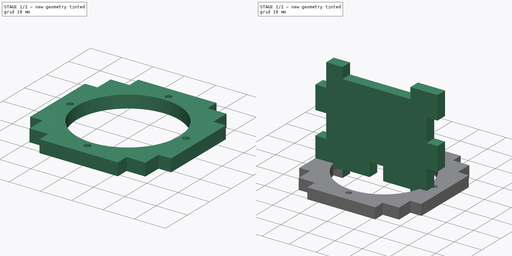
[diagram: build sequence overview — one tinted view per stage of 2, left to right]
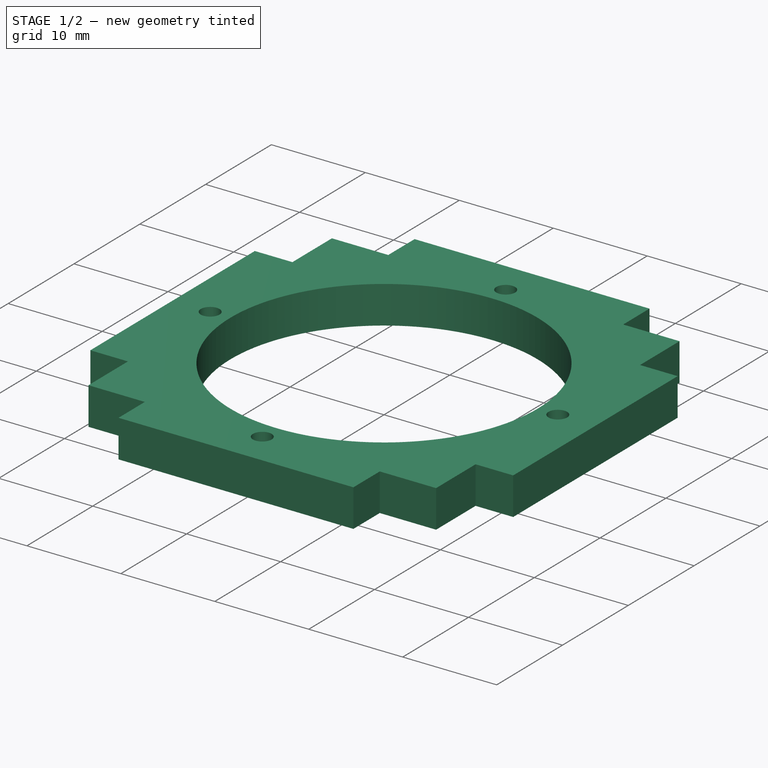
[diagram: stage 1 of 2 — iso view after this stage's code; geometry added in this stage tinted green]
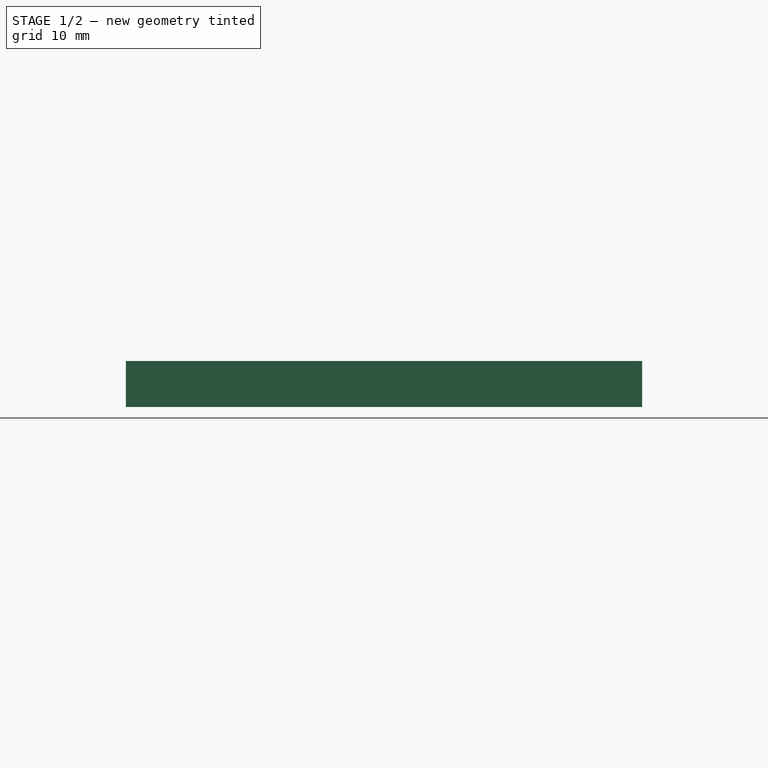
[diagram: stage 1 of 2 — front view after this stage's code; geometry added in this stage tinted green]
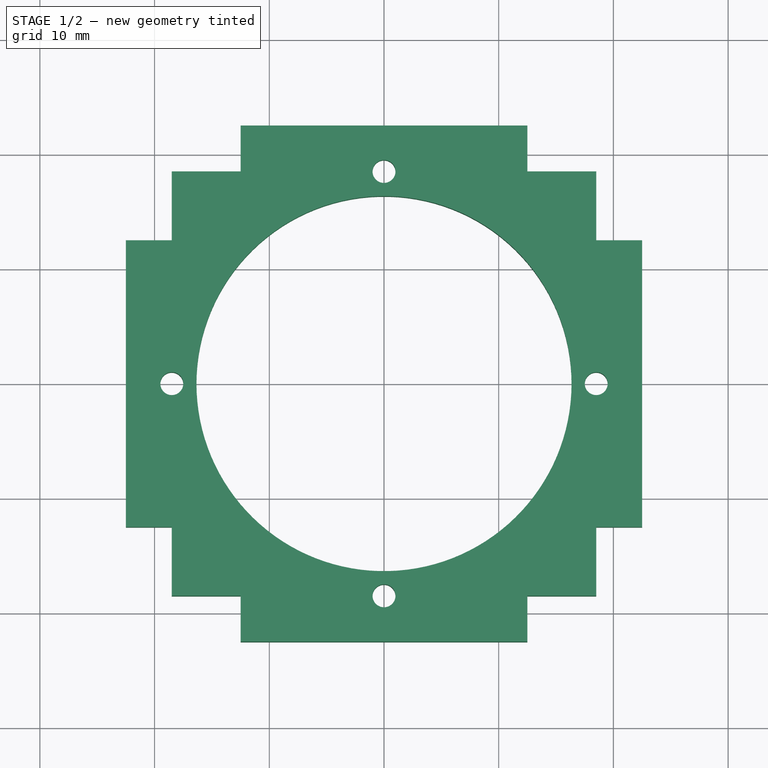
[diagram: stage 1 of 2 — top view after this stage's code; geometry added in this stage tinted green]
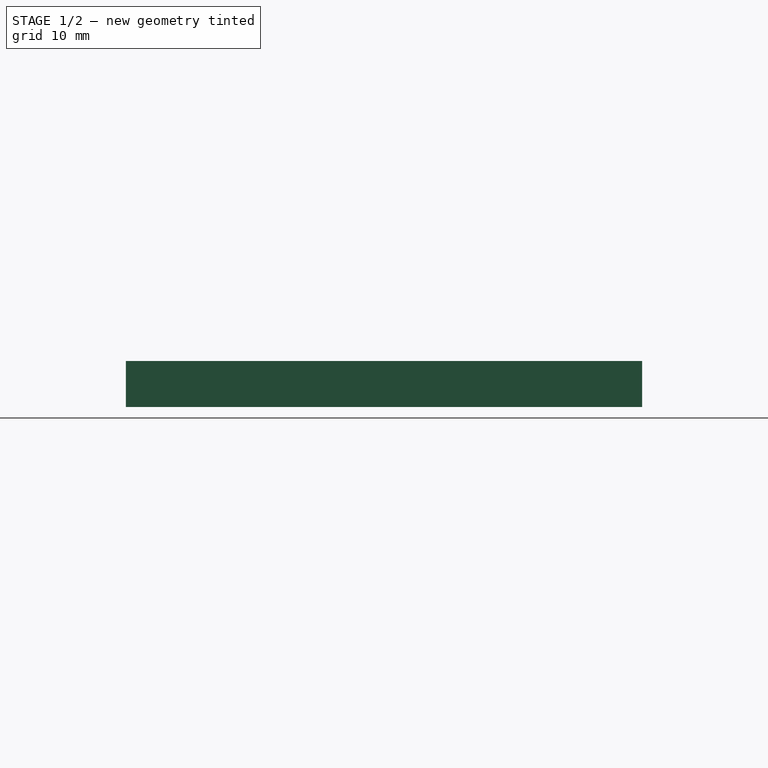
[diagram: stage 1 of 2 — right view after this stage's code; geometry added in this stage tinted green]
FCSTD DOCUMENT  (FreeCAD 0.19R24291 (Git))
Label: ri-speakertest04
License: All rights reserved
LicenseURL: http://en.wikipedia.org/wiki/All_rights_reserved
objects: Sketcher::SketchObject×4, PartDesign::Pad×2, PartDesign::Body×2, Part::Part2DObjectPython×2
note: 12 computed .brp shape members not serialized (recipe doc carries the construction recipe); baked Part::Feature solids carry a one-line shape summary decoded from their .brp

FEATURE [PartDesign::Body] Body001  label="walls"
  Group = -> [Sketch001,Pad]
  Origin = -> Origin001
  Tip = -> Pad
FEATURE [PartDesign::Pad] Pad001
  Direction = (1,1,1)
  Length = 4
  Length2 = 100
  Profile = -> Sketch
  Refine = true
  Type = 0
FEATURE [PartDesign::Body] Body  label="cover"
  Group = -> [Sketch,Pad001]
  Origin = -> Origin
  Tip = -> Pad001
FEATURE [Part::Part2DObjectPython] Shape2DView  # Draft 2D object (typed FeaturePython)
  Base = -> Sketch
  FuseArch = false
  HiddenLines = false
  InPlace = true
  Projection = (0,0,1)
  ProjectionMode = 0
  SegmentLength = 0.05
  Tessellation = false
  VisibleOnly = false
FEATURE [Sketcher::SketchObject] Sketch002  label="cover001"
  FullyConstrained = false
  sketch-geometry (25):
    g0: LineSegment StartX=-22.5 StartY=12.5 StartZ=0 EndX=-22.5 EndY=-12.5 EndZ=0
    g1: LineSegment StartX=-22.5 StartY=-12.5 StartZ=0 EndX=-18.5 EndY=-12.5 EndZ=0
    g2: LineSegment StartX=-18.5 StartY=-12.5 StartZ=0 EndX=-18.5 EndY=-18.5 EndZ=0
    g3: LineSegment StartX=-18.5 StartY=-18.5 StartZ=0 EndX=-12.5 EndY=-18.5 EndZ=0
    g4: LineSegment StartX=-12.5 StartY=-18.5 StartZ=0 EndX=-12.5 EndY=-22.5 EndZ=0
    g5: LineSegment StartX=-12.5 StartY=-22.5 StartZ=0 EndX=12.5 EndY=-22.5 EndZ=0
    g6: LineSegment StartX=12.5 StartY=-22.5 StartZ=0 EndX=12.5 EndY=-18.5 EndZ=0
    g7: LineSegment StartX=12.5 StartY=-18.5 StartZ=0 EndX=18.5 EndY=-18.5 EndZ=0
    g8: LineSegment StartX=18.5 StartY=-18.5 StartZ=0 EndX=18.5 EndY=-12.5 EndZ=0
    g9: LineSegment StartX=18.5 StartY=-12.5 StartZ=0 EndX=22.5 EndY=-12.5 EndZ=0
    g10: LineSegment StartX=22.5 StartY=-12.5 StartZ=0 EndX=22.5 EndY=12.5 EndZ=0
    g11: LineSegment StartX=22.5 StartY=12.5 StartZ=0 EndX=18.5 EndY=12.5 EndZ=0
    g12: LineSegment StartX=18.5 StartY=12.5 StartZ=0 EndX=18.5 EndY=18.5 EndZ=0
    g13: LineSegment StartX=18.5 StartY=18.5 StartZ=0 EndX=12.5 EndY=18.5 EndZ=0
    g14: LineSegment StartX=12.5 StartY=18.5 StartZ=0 EndX=12.5 EndY=22.5 EndZ=0
    g15: LineSegment StartX=12.5 StartY=22.5 StartZ=0 EndX=-12.5 EndY=22.5 EndZ=0
    g16: LineSegment StartX=-12.5 StartY=22.5 StartZ=0 EndX=-12.5 EndY=18.5 EndZ=0
    g17: LineSegment StartX=-12.5 StartY=18.5 StartZ=0 EndX=-18.5 EndY=18.5 EndZ=0
    g18: LineSegment StartX=-18.5 StartY=18.5 StartZ=0 EndX=-18.5 EndY=12.5 EndZ=0
    g19: LineSegment StartX=-18.5 StartY=12.5 StartZ=0 EndX=-22.5 EndY=12.5 EndZ=0
    g20: Circle CenterX=0 CenterY=0 CenterZ=0 NormalX=0 NormalY=0 NormalZ=1 AngleXU=0 Radius=16.35
    g21: Circle CenterX=0 CenterY=18.5 CenterZ=0 NormalX=0 NormalY=0 NormalZ=1 AngleXU=0 Radius=1
    g22: Circle CenterX=18.5 CenterY=0 CenterZ=0 NormalX=0 NormalY=0 NormalZ=1 AngleXU=0 Radius=1
    g23: Circle CenterX=-18.5 CenterY=0 CenterZ=0 NormalX=0 NormalY=0 NormalZ=1 AngleXU=0 Radius=1
    g24: Circle CenterX=0 CenterY=-18.5 CenterZ=0 NormalX=0 NormalY=0 NormalZ=1 AngleXU=0 Radius=1
FEATURE [Part::Part2DObjectPython] Shape2DView001  # Draft 2D object (typed FeaturePython)
  Base = -> Sketch001
  FuseArch = false
  HiddenLines = false
  InPlace = true
  Projection = (0,-1,0)
  ProjectionMode = 0
  SegmentLength = 0.05
  Tessellation = false
  VisibleOnly = false
FEATURE [Sketcher::SketchObject] Sketch003  label="walls001"
  FullyConstrained = false
  sketch-geometry (28):
    g0: LineSegment StartX=-37 StartY=-18.5 StartZ=0 EndX=-37 EndY=-12.5 EndZ=0
    g1: LineSegment StartX=-37 StartY=-12.5 StartZ=0 EndX=-33 EndY=-12.5 EndZ=0
    g2: LineSegment StartX=-33 StartY=-12.5 StartZ=0 EndX=-33 EndY=12.5 EndZ=0
    g3: LineSegment StartX=-33 StartY=12.5 StartZ=0 EndX=-37 EndY=12.5 EndZ=0
    g4: LineSegment StartX=-37 StartY=12.5 StartZ=0 EndX=-37 EndY=22.5 EndZ=0
    g5: LineSegment StartX=-37 StartY=22.5 StartZ=0 EndX=-28.5 EndY=22.5 EndZ=0
    g6: LineSegment StartX=-28.5 StartY=22.5 StartZ=0 EndX=-28.5 EndY=18.5 EndZ=0
    g7: LineSegment StartX=-28.5 StartY=18.5 StartZ=0 EndX=-20 EndY=18.5 EndZ=0
    g8: LineSegment StartX=-20 StartY=18.5 StartZ=0 EndX=-20 EndY=22.5 EndZ=0
    g9: LineSegment StartX=-20 StartY=22.5 StartZ=0 EndX=-11.5 EndY=22.5 EndZ=0
    g10: LineSegment StartX=-11.5 StartY=22.5 StartZ=0 EndX=-11.5 EndY=18.5 EndZ=0
    g11: LineSegment StartX=-11.5 StartY=18.5 StartZ=0 EndX=0 EndY=18.5 EndZ=0
    g12: LineSegment StartX=0 StartY=18.5 StartZ=0 EndX=0 EndY=12.5 EndZ=0
    g13: LineSegment StartX=0 StartY=12.5 StartZ=0 EndX=-3 EndY=12.5 EndZ=0
    g14: LineSegment StartX=-3 StartY=12.5 StartZ=0 EndX=-3 EndY=2.5 EndZ=0
    g15: LineSegment StartX=-3 StartY=2.5 StartZ=0 EndX=-8 EndY=2.5 EndZ=0
    g16: LineSegment StartX=-8 StartY=2.5 StartZ=0 EndX=-8 EndY=-2.5 EndZ=0
    g17: LineSegment StartX=-8 StartY=-2.5 StartZ=0 EndX=-3 EndY=-2.5 EndZ=0
    g18: LineSegment StartX=-3 StartY=-2.5 StartZ=0 EndX=-3 EndY=-12.5 EndZ=0
    g19: LineSegment StartX=-3 StartY=-12.5 StartZ=0 EndX=0 EndY=-12.5 EndZ=0
    g20: LineSegment StartX=0 StartY=-12.5 StartZ=0 EndX=0 EndY=-22.5 EndZ=0
    g21: LineSegment StartX=0 StartY=-22.5 StartZ=0 EndX=-11.5 EndY=-22.5 EndZ=0
    g22: LineSegment StartX=-11.5 StartY=-22.5 StartZ=0 EndX=-11.5 EndY=-18.5 EndZ=0
    g23: LineSegment StartX=-11.5 StartY=-18.5 StartZ=0 EndX=-20 EndY=-18.5 EndZ=0
    g24: LineSegment StartX=-20 StartY=-18.5 StartZ=0 EndX=-20 EndY=-22.5 EndZ=0
    g25: LineSegment StartX=-20 StartY=-22.5 StartZ=0 EndX=-28.5 EndY=-22.5 EndZ=0
    g26: LineSegment StartX=-28.5 StartY=-22.5 StartZ=0 EndX=-28.5 EndY=-18.5 EndZ=0
    g27: LineSegment StartX=-28.5 StartY=-18.5 StartZ=0 EndX=-37 EndY=-18.5 EndZ=0
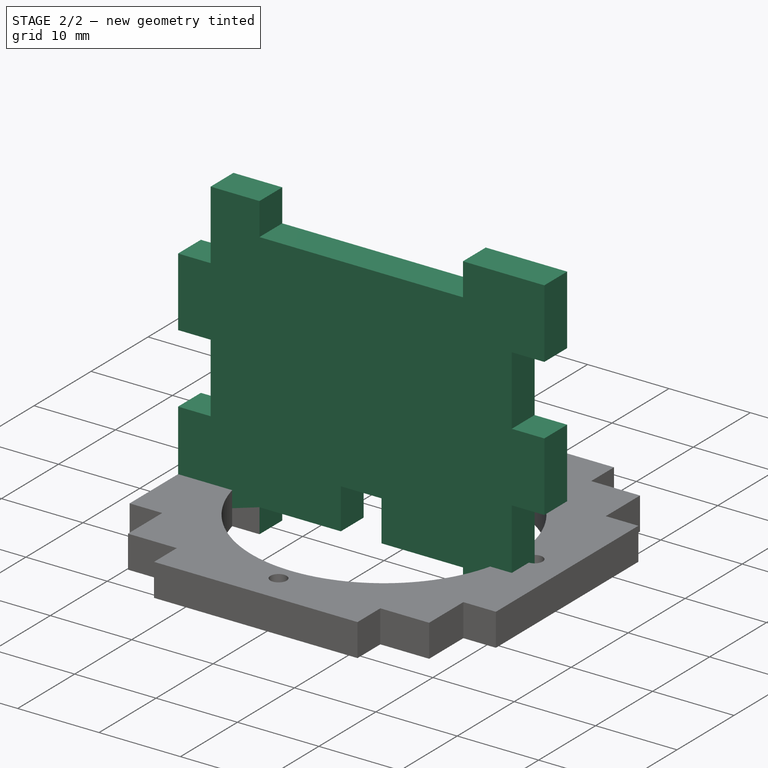
[diagram: stage 2 of 2 — iso view after this stage's code; geometry added in this stage tinted green]
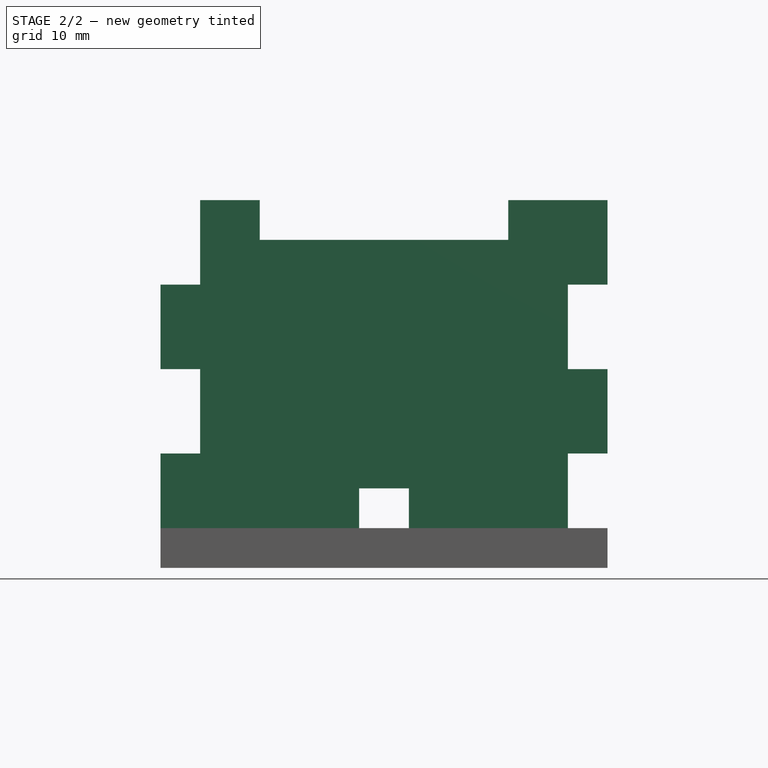
[diagram: stage 2 of 2 — front view after this stage's code; geometry added in this stage tinted green]
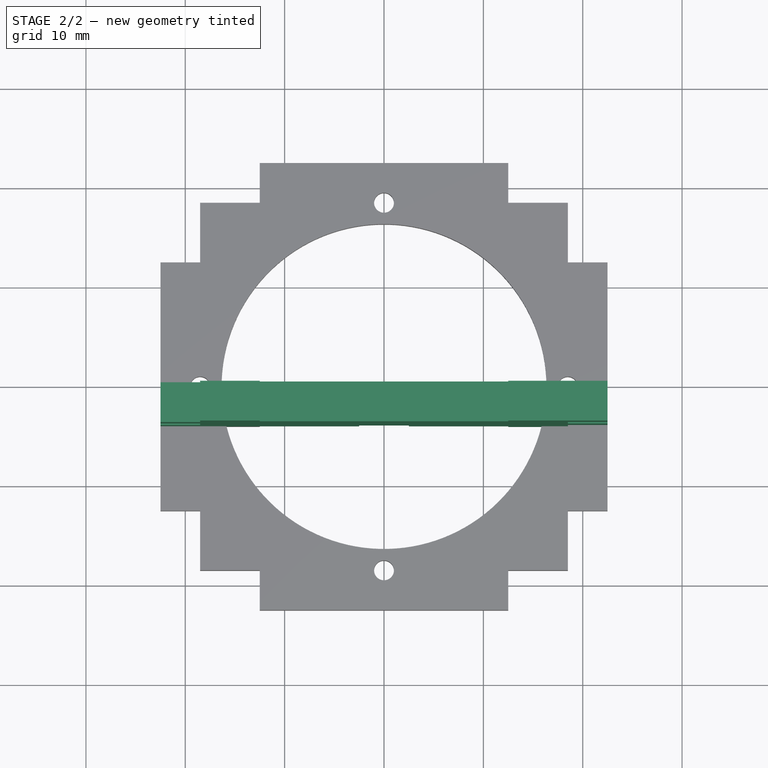
[diagram: stage 2 of 2 — top view after this stage's code; geometry added in this stage tinted green]
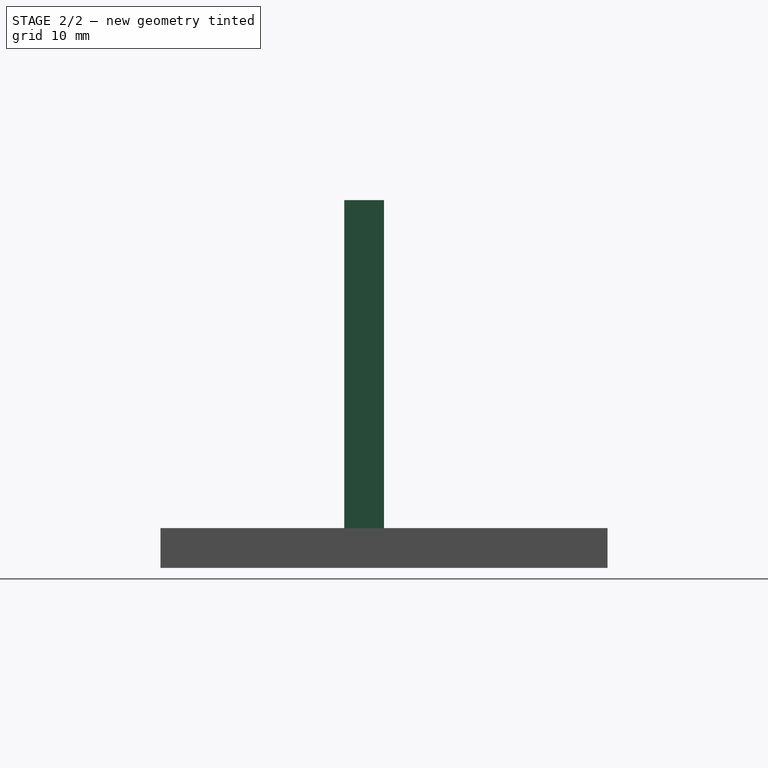
[diagram: stage 2 of 2 — right view after this stage's code; geometry added in this stage tinted green]
FEATURE [Sketcher::SketchObject] Sketch  label="Sketch01"
  FullyConstrained = true
  MapMode = 5
  Support = -> [XY_Plane]
  expr: Constraints[70] = .Constraints.distance
  expr: Constraints[57] = <<Sketch>>.Constraints.base - <<Sketch>>.Constraints.thickness
  expr: Constraints[56] = <<Sketch>>.Constraints.thickness
  expr: Constraints[55] = <<Sketch>>.Constraints.length
  expr: .Constraints.distance = <<Sketch>>.Constraints.thickness
  sketch-geometry (25):
    g0: LineSegment StartX=-22.5 StartY=12.5 StartZ=0 EndX=-22.5 EndY=-12.5 EndZ=0
    g1: LineSegment StartX=-22.5 StartY=-12.5 StartZ=0 EndX=-18.5 EndY=-12.5 EndZ=0
    g2: LineSegment StartX=-18.5 StartY=-12.5 StartZ=0 EndX=-18.5 EndY=-18.5 EndZ=0
    g3: LineSegment StartX=-18.5 StartY=-18.5 StartZ=0 EndX=-12.5 EndY=-18.5 EndZ=0
    g4: LineSegment StartX=-12.5 StartY=-18.5 StartZ=0 EndX=-12.5 EndY=-22.5 EndZ=0
    g5: LineSegment StartX=-12.5 StartY=-22.5 StartZ=0 EndX=12.5 EndY=-22.5 EndZ=0
    g6: LineSegment StartX=12.5 StartY=-22.5 StartZ=0 EndX=12.5 EndY=-18.5 EndZ=0
    g7: LineSegment StartX=12.5 StartY=-18.5 StartZ=0 EndX=18.5 EndY=-18.5 EndZ=0
    g8: LineSegment StartX=18.5 StartY=-18.5 StartZ=0 EndX=18.5 EndY=-12.5 EndZ=0
    g9: LineSegment StartX=18.5 StartY=-12.5 StartZ=0 EndX=22.5 EndY=-12.5 EndZ=0
    g10: LineSegment StartX=22.5 StartY=-12.5 StartZ=0 EndX=22.5 EndY=12.5 EndZ=0
    g11: LineSegment StartX=22.5 StartY=12.5 StartZ=0 EndX=18.5 EndY=12.5 EndZ=0
    g12: LineSegment StartX=18.5 StartY=12.5 StartZ=0 EndX=18.5 EndY=18.5 EndZ=0
    g13: LineSegment StartX=18.5 StartY=18.5 StartZ=0 EndX=12.5 EndY=18.5 EndZ=0
    g14: LineSegment StartX=12.5 StartY=18.5 StartZ=0 EndX=12.5 EndY=22.5 EndZ=0
    g15: LineSegment StartX=12.5 StartY=22.5 StartZ=0 EndX=-12.5 EndY=22.5 EndZ=0
    g16: LineSegment StartX=-12.5 StartY=22.5 StartZ=0 EndX=-12.5 EndY=18.5 EndZ=0
    g17: LineSegment StartX=-12.5 StartY=18.5 StartZ=0 EndX=-18.5 EndY=18.5 EndZ=0
    g18: LineSegment StartX=-18.5 StartY=18.5 StartZ=0 EndX=-18.5 EndY=12.5 EndZ=0
    g19: LineSegment StartX=-18.5 StartY=12.5 StartZ=0 EndX=-22.5 EndY=12.5 EndZ=0
    g20: Circle CenterX=0 CenterY=0 CenterZ=0 NormalX=0 NormalY=0 NormalZ=1 AngleXU=0 Radius=16.35
    g21: Circle CenterX=0 CenterY=18.5 CenterZ=0 NormalX=0 NormalY=0 NormalZ=1 AngleXU=0 Radius=1
    g22: Circle CenterX=18.5 CenterY=0 CenterZ=0 NormalX=0 NormalY=0 NormalZ=1 AngleXU=0 Radius=1
    g23: Circle CenterX=-18.5 CenterY=0 CenterZ=0 NormalX=0 NormalY=0 NormalZ=1 AngleXU=0 Radius=1
    g24: Circle CenterX=0 CenterY=-18.5 CenterZ=0 NormalX=0 NormalY=0 NormalZ=1 AngleXU=0 Radius=1
  constraints (71):
    c: Vertical(g0)
    c: Coincident(g0,g1)
    c: Horizontal(g1)
    c: Coincident(g1,g2)
    c: Vertical(g2)
    c: Coincident(g2,g3)
    c: Horizontal(g3)
    c: Coincident(g3,g4)
    c: Vertical(g4)
    c: Coincident(g4,g5)
    c: Horizontal(g5)
    c: Coincident(g5,g6)
    c: Vertical(g6)
    c: Coincident(g6,g7)
    c: Horizontal(g7)
    c: Coincident(g7,g8)
    c: Vertical(g8)
    c: Coincident(g8,g9)
    c: Horizontal(g9)
    c: Coincident(g9,g10)
    c: Vertical(g10)
    c: Coincident(g10,g11)
    c: Horizontal(g11)
    c: Coincident(g11,g12)
    c: Vertical(g12)
    c: Coincident(g12,g13)
    c: Horizontal(g13)
    c: Coincident(g13,g14)
    c: Vertical(g14)
    c: Coincident(g14,g15)
    c: Horizontal(g15)
    c: Coincident(g15,g16)
    c: Vertical(g16)
    c: Coincident(g16,g17)
    c: Horizontal(g17)
    c: Coincident(g17,g18)
    c: Vertical(g18)
    c: Coincident(g18,g19)
    c: Coincident(g19,g0)
    c: Horizontal(g19)
    c: Equal(g16,g19)
    c: Equal(g19,g1)
    c: Equal(g1,g4)
    c: Equal(g4,g6)
    c: Equal(g6,g9)
    c: Equal(g9,g11)
    c: Equal(g11,g14)
    c: Equal(g18,g17)
    c: Equal(g17,g2)
    c: Equal(g2,g3)
    c: Equal(g3,g7)
    c: Equal(g7,g8)
    c: Equal(g8,g12)
    c: Equal(g12,g13)
    c: Symmetric(g12,g2,g-1)
    c: DistanceX(g0,g10) = 45
    c: DistanceY(g16,g16) = 4
    c: DistanceX(g17,g17) = 6
    c: Equal(g10,g5)
    c: Coincident(g20,g-1)
    c: Diameter(g20) = 32.7  'diameter'
    c: PointOnObject(g21,g-2)
    c: PointOnObject(g22,g-1)
    c: Equal(g23,g24)
    c: Equal(g24,g21)
    c: Equal(g21,g22)
    c: Diameter(g21) = 2  'screw'
    c: Symmetric(g22,g23,g20)
    c: DistanceY(g21,g15) = 4  'distance'
    c: Symmetric(g21,g24,g20)
    c: DistanceX(g0,g23) = 4
FEATURE [Sketcher::SketchObject] Sketch001  label="Sketch"
  FullyConstrained = true
  MapMode = 5
  Placement = pos=(0,0,0) rot=(1,0,0;1.5708rad)
  Support = -> [XZ_Plane001]
  expr: Constraints[80] = sum(.Constraints.tooth; .Constraints.baseplate)
  expr: Constraints[73] = .Constraints.base - .Constraints.thickness
  sketch-geometry (28):
    g0: LineSegment StartX=-18.5 StartY=37 StartZ=0 EndX=-12.5 EndY=37 EndZ=0
    g1: LineSegment StartX=-12.5 StartY=37 StartZ=0 EndX=-12.5 EndY=33 EndZ=0
    g2: LineSegment StartX=-12.5 StartY=33 StartZ=0 EndX=12.5 EndY=33 EndZ=0
    g3: LineSegment StartX=12.5 StartY=33 StartZ=0 EndX=12.5 EndY=37 EndZ=0
    g4: LineSegment StartX=12.5 StartY=37 StartZ=0 EndX=22.5 EndY=37 EndZ=0
    g5: LineSegment StartX=22.5 StartY=37 StartZ=0 EndX=22.5 EndY=28.5 EndZ=0
    g6: LineSegment StartX=22.5 StartY=28.5 StartZ=0 EndX=18.5 EndY=28.5 EndZ=0
    g7: LineSegment StartX=18.5 StartY=28.5 StartZ=0 EndX=18.5 EndY=20 EndZ=0
    g8: LineSegment StartX=18.5 StartY=20 StartZ=0 EndX=22.5 EndY=20 EndZ=0
    g9: LineSegment StartX=22.5 StartY=20 StartZ=0 EndX=22.5 EndY=11.5 EndZ=0
    g10: LineSegment StartX=22.5 StartY=11.5 StartZ=0 EndX=18.5 EndY=11.5 EndZ=0
    g11: LineSegment StartX=18.5 StartY=11.5 StartZ=0 EndX=18.5 EndY=0 EndZ=0
    g12: LineSegment StartX=18.5 StartY=0 StartZ=0 EndX=12.5 EndY=0 EndZ=0
    g13: LineSegment StartX=12.5 StartY=0 StartZ=0 EndX=12.5 EndY=3 EndZ=0
    g14: LineSegment StartX=12.5 StartY=3 StartZ=0 EndX=2.5 EndY=3 EndZ=0
    g15: LineSegment StartX=2.5 StartY=3 StartZ=0 EndX=2.5 EndY=8 EndZ=0
    g16: LineSegment StartX=2.5 StartY=8 StartZ=0 EndX=-2.5 EndY=8 EndZ=0
    g17: LineSegment StartX=-2.5 StartY=8 StartZ=0 EndX=-2.5 EndY=3 EndZ=0
    g18: LineSegment StartX=-2.5 StartY=3 StartZ=0 EndX=-12.5 EndY=3 EndZ=0
    g19: LineSegment StartX=-12.5 StartY=3 StartZ=0 EndX=-12.5 EndY=0 EndZ=0
    g20: LineSegment StartX=-12.5 StartY=0 StartZ=0 EndX=-22.5 EndY=0 EndZ=0
    g21: LineSegment StartX=-22.5 StartY=0 StartZ=0 EndX=-22.5 EndY=11.5 EndZ=0
    g22: LineSegment StartX=-22.5 StartY=11.5 StartZ=0 EndX=-18.5 EndY=11.5 EndZ=0
    g23: LineSegment StartX=-18.5 StartY=11.5 StartZ=0 EndX=-18.5 EndY=20 EndZ=0
    g24: LineSegment StartX=-18.5 StartY=20 StartZ=0 EndX=-22.5 EndY=20 EndZ=0
    g25: LineSegment StartX=-22.5 StartY=20 StartZ=0 EndX=-22.5 EndY=28.5 EndZ=0
    g26: LineSegment StartX=-22.5 StartY=28.5 StartZ=0 EndX=-18.5 EndY=28.5 EndZ=0
    g27: LineSegment StartX=-18.5 StartY=28.5 StartZ=0 EndX=-18.5 EndY=37 EndZ=0
  constraints (83):
    c: Horizontal(g0)
    c: Coincident(g0,g1)
    c: Vertical(g1)
    c: Coincident(g1,g2)
    c: Horizontal(g2)
    c: Coincident(g2,g3)
    c: Vertical(g3)
    c: Coincident(g3,g4)
    c: Horizontal(g4)
    c: Coincident(g4,g5)
    c: Vertical(g5)
    c: Coincident(g5,g6)
    c: Horizontal(g6)
    c: Coincident(g6,g7)
    c: Vertical(g7)
    c: Coincident(g7,g8)
    c: Horizontal(g8)
    c: Coincident(g8,g9)
    c: Vertical(g9)
    c: Coincident(g9,g10)
    c: Horizontal(g10)
    c: Coincident(g10,g11)
    c: Vertical(g11)
    c: Coincident(g11,g12)
    c: Horizontal(g12)
    c: Coincident(g12,g13)
    c: Vertical(g13)
    c: Coincident(g13,g14)
    c: Horizontal(g14)
    c: Coincident(g14,g15)
    c: Vertical(g15)
    c: Coincident(g15,g16)
    c: Horizontal(g16)
    c: Coincident(g16,g17)
    c: Vertical(g17)
    c: Coincident(g17,g18)
    c: Horizontal(g18)
    c: Coincident(g18,g19)
    c: Vertical(g19)
    c: Coincident(g19,g20)
    c: Horizontal(g20)
    c: Coincident(g20,g21)
    c: Vertical(g21)
    c: Coincident(g21,g22)
    c: Horizontal(g22)
    c: Coincident(g22,g23)
    c: Vertical(g23)
    c: Coincident(g23,g24)
    c: Horizontal(g24)
    c: Coincident(g24,g25)
    c: Vertical(g25)
    c: Coincident(g25,g26)
    c: Horizontal(g26)
    c: Coincident(g26,g27)
    c: Vertical(g27)
    c: Coincident(g0,g27)
    c: Equal(g26,g24)
    c: Equal(g24,g22)
    c: Equal(g22,g1)
    c: Equal(g1,g3)
    c: Equal(g3,g6)
    c: Equal(g6,g8)
    c: Equal(g8,g10)
    c: DistanceY(g1,g1) = 4  'thickness'
    c: Equal(g27,g25)
    c: Equal(g25,g23)
    c: Equal(g23,g5)
    c: Equal(g5,g7)
    c: Equal(g7,g9)
    c: DistanceY(g27,g27) = 8.5  'tooth'
    c: Equal(g21,g11)
    c: DistanceY(g19,g19) = 3  'baseplate'
    c: DistanceX(g20,g20) = 10  'base'
    c: DistanceX(g12,g12) = 6
    c: Equal(g17,g16)
    c: Equal(g16,g15)
    c: DistanceX(g16,g16) = 5  'cable'
    c: DistanceX(g25,g4) = 45  'length'
    c: Equal(g12,g0)
    c: Equal(g4,g20)
    c: DistanceY(g21,g21) = 11.5
    c: Equal(g14,g18)
    c: Symmetric(g12,g19,g-1)
FEATURE [PartDesign::Pad] Pad
  Direction = (1,1,1)
  Length = 4
  Length2 = 100
  Placement = pos=(0,0,0) rot=(1,0,0;1.5708rad)
  Profile = -> Sketch001
  Refine = true
  Type = 0
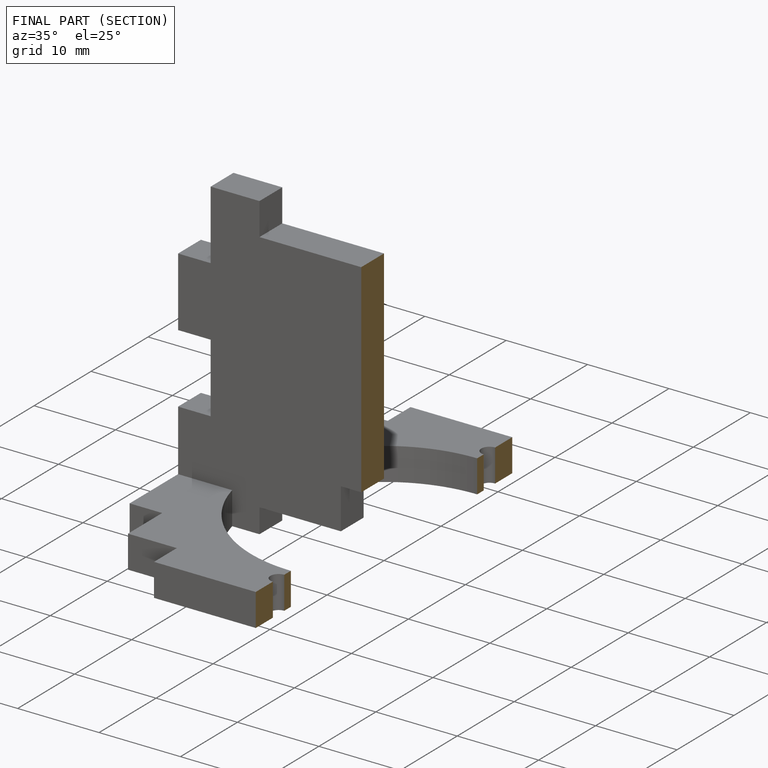
[diagram: finished part — half-section view (interior)]
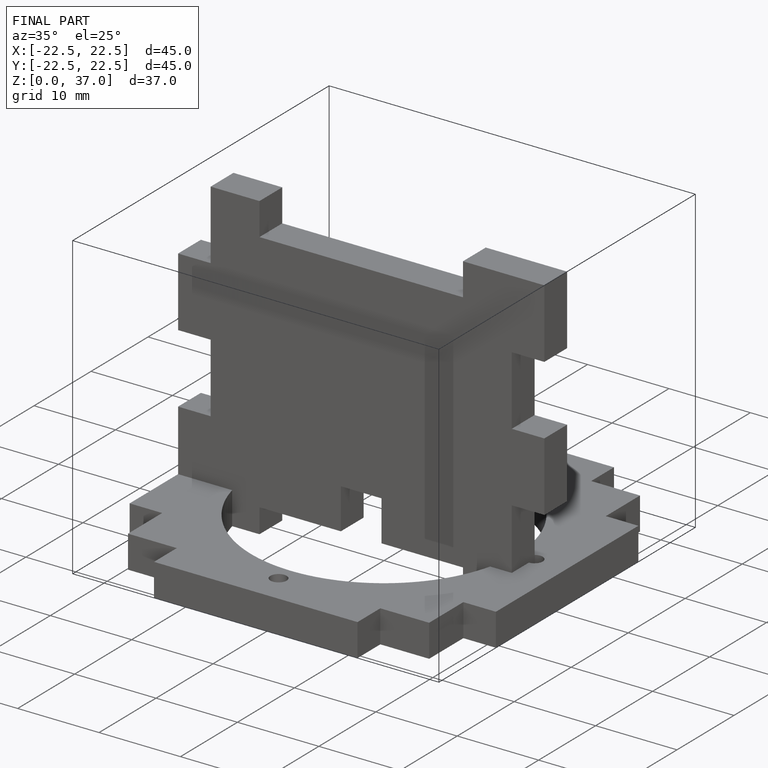
[diagram: finished part — iso view with bounding-box wireframe]
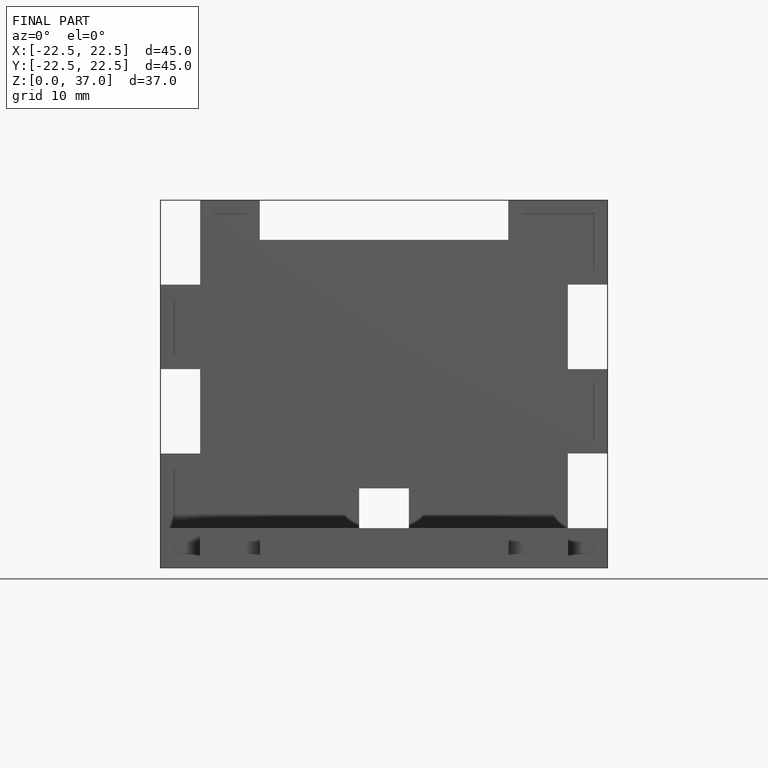
[diagram: finished part — front view with bounding-box wireframe]
